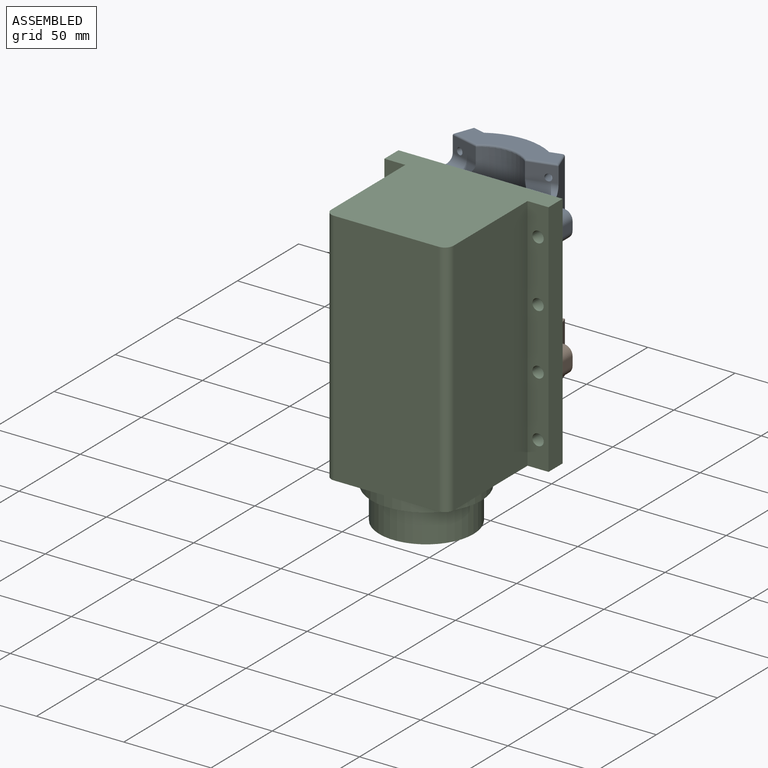
[diagram: assembled view]
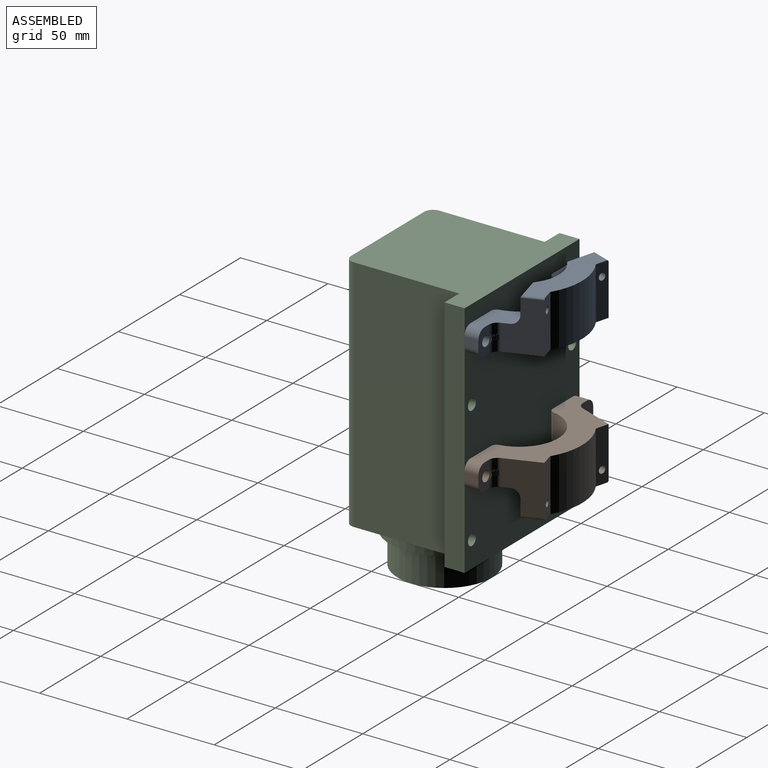
[diagram: assembled view, second angle]
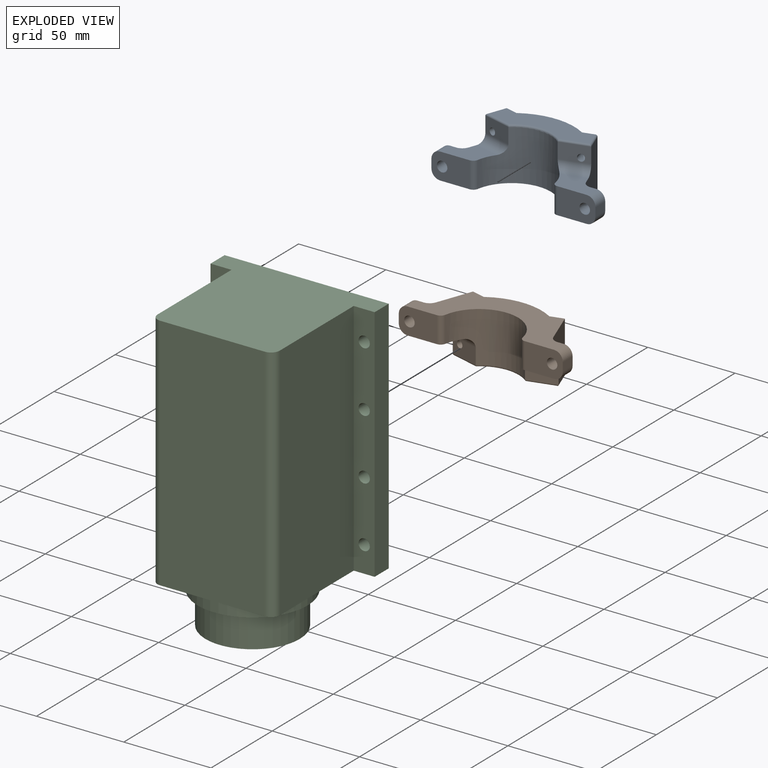
[diagram: exploded view]
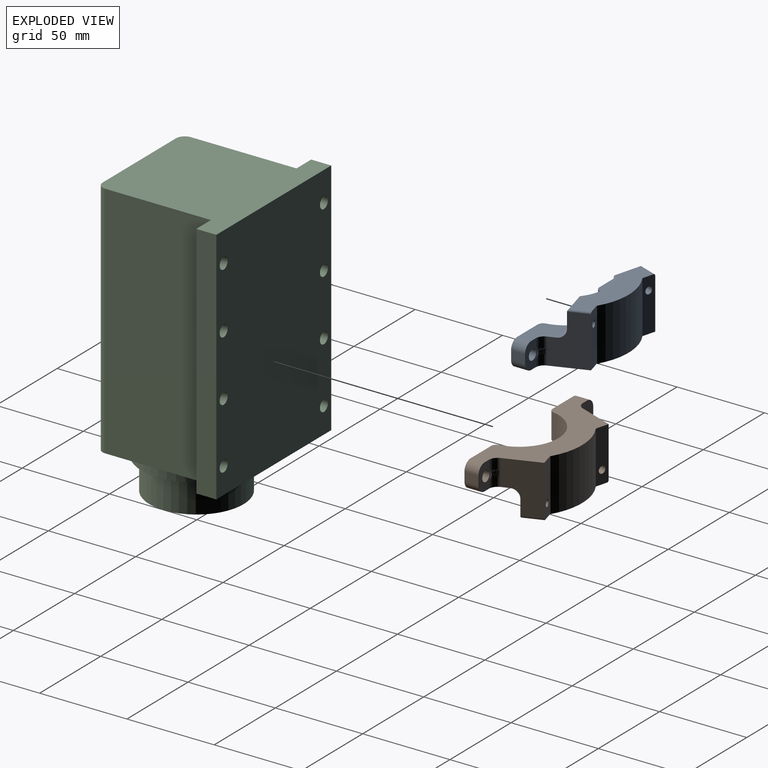
[diagram: exploded view, second angle]
ASSEMBLY  parts=3 mates=2
PART A: 47 faces, bbox 94.1x34.7x30.2 mm
  f0: bspline ~5.12x4.84mm, area 14.6mm2, adj f17,f38,f39,f40
  f1: cylinder r=5mm len=5.83mm, axis (0,0,-1), area 34.2mm2, adj f3,f10,f13,f37,f41
  f2: cylinder r=5mm len=5.83mm, axis (0,0,-1), area 34.2mm2, adj f3,f9,f13,f37,f41
  f3: plane 15x10.37mm, normal (0,1,0), area 98.7mm2, adj f1,f2,f4,f9,f10,f32,f33,f34
  f4: plane 8x5mm, normal (-1,0,0), area 40mm2, adj f3,f5,f32,f33
  f5: plane 21.87x15mm, normal (0,-1,0), area 289mm2, adj f4,f9,f10,f14,f32,f33,f34
  f6: plane 21.87x15mm, normal (0,-1,0), area 289mm2, adj f7,f10,f11,f16,f29,f30,f31
  f7: plane 8x5mm, normal (1,0,0), area 40mm2, adj f6,f8,f30,f31
  f8: plane 15x10.37mm, normal (0,1,0), area 98.7mm2, adj f7,f10,f11,f29,f30,f31,f38,f39
  f9: plane 23.89x15.64mm, normal (0,0,1), area 249.6mm2, adj f2,f3,f5,f13,f14,f15,f32,f36
  f10: plane 83.94x34.5mm, normal (0,0,-1), area 1410.1mm2, adj f1,f3,f5,f6,f8,f12,f13,f14
  f11: plane 23.89x15.64mm, normal (0,0,1), area 249.6mm2, adj f6,f8,f15,f16,f17,f31,f35,f39
  f12: plane 30.04x7.77mm, normal (0.26,0.97,0), area 227.2mm2, adj f10,f13,f23,f26,f27,f42
  f13: plane 29.19x20.21mm, normal (-0.94,0.35,0), area 487.9mm2, adj f1,f2,f9,f10,f12,f24,f36,f37
  f14: cylinder r=3mm len=15mm, axis (0,0,-1), area 62.7mm2, adj f5,f9,f10,f15
  f15: cylinder r=22.5mm len=44.29mm, axis (0,0,-1), area 1396.7mm2, adj f9,f10,f11,f14,f16,f24,f25,f35
  f16: cylinder r=3mm len=15mm, axis (0,0,-1), area 62.7mm2, adj f6,f10,f11,f15
  f17: plane 29.19x20.21mm, normal (0.94,0.35,0), area 487.9mm2, adj f0,f10,f11,f18,f25,f35,f38,f39
  f18: plane 30.04x7.77mm, normal (-0.26,0.97,0), area 227.2mm2, adj f10,f17,f19,f26,f28,f46
  f19: plane 30x0.04mm, normal (0.97,0.26,0), area 1.1mm2, adj f10,f18,f20,f26
  f20: cylinder r=0.4mm len=30mm, axis (0,0,-1), area 9.3mm2, adj f10,f19,f21,f26
  f21: cylinder r=36mm len=36.72mm, axis (0,0,-1), area 1156mm2, adj f10,f20,f22,f26
  f22: cylinder r=0.4mm len=30mm, axis (0,0,-1), area 9.3mm2, adj f10,f21,f23,f26
  f23: plane 30x0.04mm, normal (-0.97,0.26,0), area 1.1mm2, adj f10,f12,f22,f26
  f24: plane 16.18x9mm, normal (-0.26,-0.97,0), area 138.2mm2, adj f13,f15,f27,f36,f43
  f25: plane 16.18x9mm, normal (0.26,-0.97,0), area 138.2mm2, adj f15,f17,f28,f35,f45
  f26: plane 57.98x17.39mm, normal (0,0,1), area 671.4mm2, adj f12,f18,f19,f20,f21,f22,f23,f42
  f27: cylinder r=2mm len=12.22mm, axis (0.26,0.97,0), area 145.5mm2, adj f12,f24
  f28: cylinder r=2mm len=12.22mm, axis (-0.26,0.97,0), area 145.5mm2, adj f18,f25
  f29: cylinder r=3mm len=8mm, axis (0,-1,0), area 150.8mm2, adj f6,f8
  f30: cylinder r=5mm len=8mm, axis (0,-1,0), area 62.8mm2, adj f6,f7,f8,f10
  f31: cylinder r=5mm len=8mm, axis (0,-1,0), area 62.8mm2, adj f6,f7,f8,f11
  f32: cylinder r=5mm len=8mm, axis (0,-1,0), area 62.8mm2, adj f3,f4,f5,f9
  f33: cylinder r=5mm len=8mm, axis (0,-1,0), area 62.8mm2, adj f3,f4,f5,f10
  f34: cylinder r=3mm len=8mm, axis (0,-1,0), area 150.8mm2, adj f3,f5
  f35: cylinder r=5mm len=17.92mm, axis (0.97,0.26,0), area 122.6mm2, adj f11,f15,f17,f25
  f36: cylinder r=5mm len=17.92mm, axis (0.97,-0.26,0), area 122.6mm2, adj f9,f13,f15,f24
  f37: bspline ~4.95x4.29mm, area 14.6mm2, adj f1,f2,f13,f41
  f38: cylinder r=5mm len=5.83mm, axis (0,0,-1), area 34.2mm2, adj f0,f8,f10,f17,f40
  f39: cylinder r=5mm len=5.83mm, axis (0,0,-1), area 34.2mm2, adj f0,f8,f11,f17,f40
  f40: cylinder r=4.25mm len=6.88mm, axis (0,-1,0), area 1.2mm2, adj f0,f8,f38,f39
  f41: cylinder r=4.25mm len=6.88mm, axis (0,-1,0), area 1.2mm2, adj f1,f2,f3,f37
  f42: cylinder r=1mm len=11.34mm, axis (0.35,0.94,0), area 17.5mm2, adj f12,f13,f26,f43
  f43: cylinder r=1mm len=16.44mm, axis (-0.97,0.26,0), area 25.1mm2, adj f24,f26,f42,f44
  f44: torus R=23.5mm, axis (0,0,1), area 48mm2, adj f15,f26,f43,f45
  f45: cylinder r=1mm len=16.44mm, axis (-0.97,-0.26,0), area 25.1mm2, adj f25,f26,f44,f46
  f46: cylinder r=1mm len=11.34mm, axis (0.35,-0.94,0), area 17.5mm2, adj f17,f18,f26,f45
PART B: same geometry as A
PART C: 24 faces, bbox 94x77x162 mm
  f0: plane 137x94mm, normal (0,-1,0), area 12612.5mm2, adj f2,f3,f10,f11,f12,f13,f14,f15
  f1: plane 137x12mm, normal (0,1,0), area 1511.3mm2, adj f2,f9,f10,f11,f16,f17,f18,f19
  f2: plane 137x11.5mm, normal (-1,0,0), area 1575.5mm2, adj f0,f1,f10,f11
  f3: plane 137x11.5mm, normal (1,0,0), area 1575.5mm2, adj f0,f4,f10,f11
  f4: plane 137x12mm, normal (0,1,0), area 1511.3mm2, adj f3,f5,f10,f11,f12,f13,f14,f15
  f5: plane 137x60.5mm, normal (1,0,0), area 8288.5mm2, adj f4,f6,f10,f11
  f6: cylinder r=5mm len=137mm, axis (0,0,-1), area 1076mm2, adj f5,f7,f10,f11
  f7: plane 137x60mm, normal (0,1,0), area 8220mm2, adj f6,f8,f10,f11
  f8: cylinder r=5mm len=137mm, axis (0,0,-1), area 1076mm2, adj f7,f9,f10,f11
  f9: plane 137x60.5mm, normal (-1,0,0), area 8288.5mm2, adj f1,f8,f10,f11
  f10: plane 94x77mm, normal (0,0,1), area 5655.3mm2, adj f0,f1,f2,f3,f4,f5,f6,f7
  f11: plane 94x77mm, normal (0,0,-1), area 2547.9mm2, adj f0,f1,f2,f3,f4,f5,f6,f7
  f12: cylinder r=3.25mm len=11.5mm, axis (0,1,0), area 234.8mm2, adj f0,f4
  f13: cylinder r=3.25mm len=11.5mm, axis (0,1,0), area 234.8mm2, adj f0,f4
  f14: cylinder r=3.25mm len=11.5mm, axis (0,1,0), area 234.8mm2, adj f0,f4
  f15: cylinder r=3.25mm len=11.5mm, axis (0,1,0), area 234.8mm2, adj f0,f4
  f16: cylinder r=3.25mm len=11.5mm, axis (0,1,0), area 234.8mm2, adj f0,f1
  f17: cylinder r=3.25mm len=11.5mm, axis (0,1,0), area 234.8mm2, adj f0,f1
  f18: cylinder r=3.25mm len=11.5mm, axis (0,1,0), area 234.8mm2, adj f0,f1
  f19: cylinder r=3.25mm len=11.5mm, axis (0,1,0), area 234.8mm2, adj f0,f1
  f20: cylinder r=31.45mm len=62.9mm, axis (0,0,1), area 1284.4mm2, adj f11,f21
  f21: plane 62.9x62.9mm, normal (0,0,-1), area 817.1mm2, adj f20,f22
  f22: cylinder r=27mm len=54mm, axis (0,0,1), area 3138.5mm2, adj f21,f23
  f23: plane 54x54mm, normal (0,0,-1), area 2290.2mm2, adj f22
PLACE A t=(-70.75,20.18,38.47)mm
PLACE B rot(axis=(0,1,0),180deg) t=(-70.75,20.18,-16.53)mm
PLACE C rot(axis=(0,0,-1),180deg) t=(-70.9,-22.57,-74.03)mm
MATE fastened B.f34 <-> C.f18  axis (0,-1,0) through (-29.9,21.68,-24.03)mm
MATE fastened A.f29 <-> C.f16  axis (0,-1,0) through (-29.9,21.68,45.97)mm
